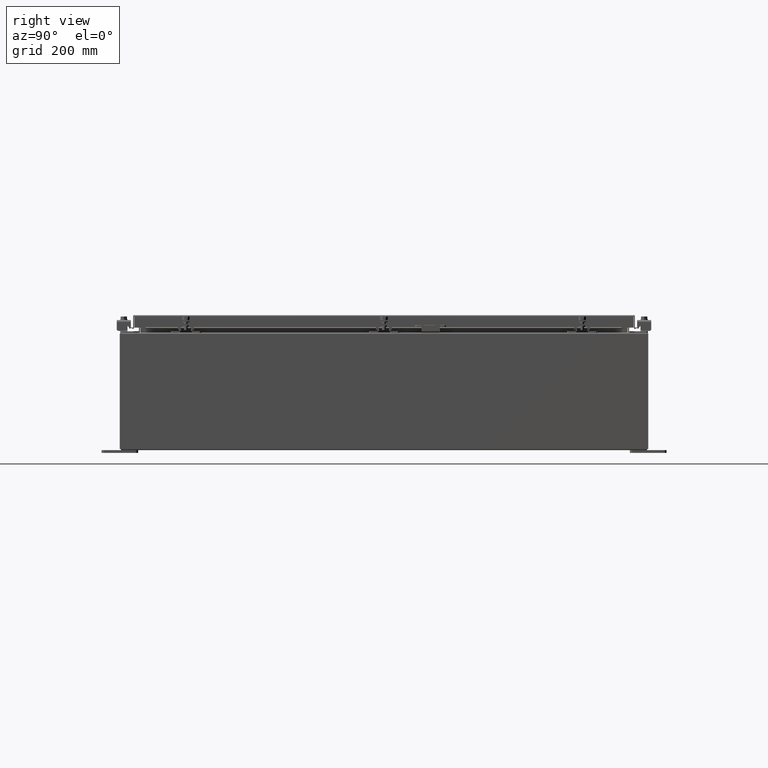
[diagram: clean part render]
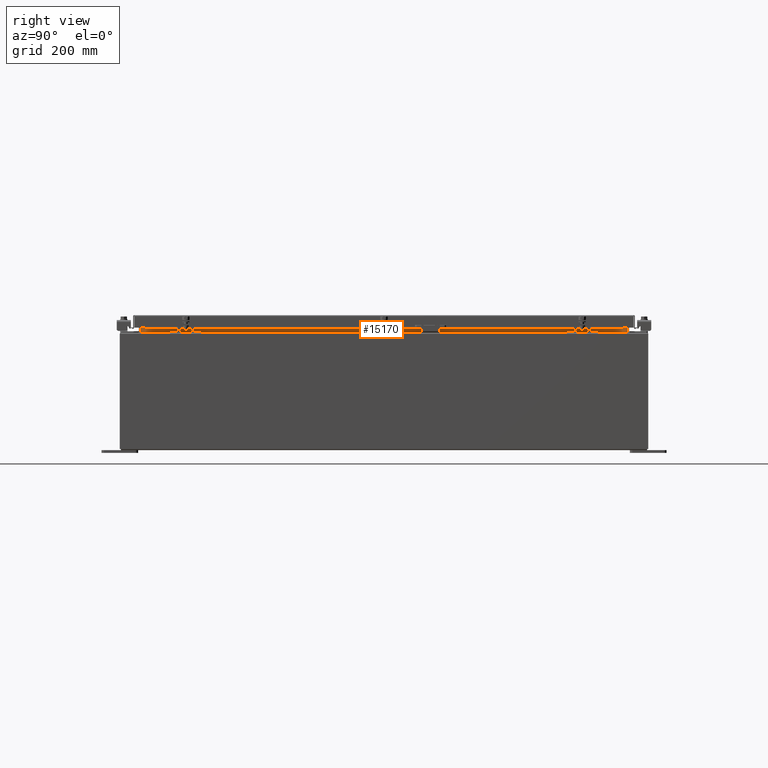
[diagram: same view with one face highlighted and labeled with its STEP entity id]
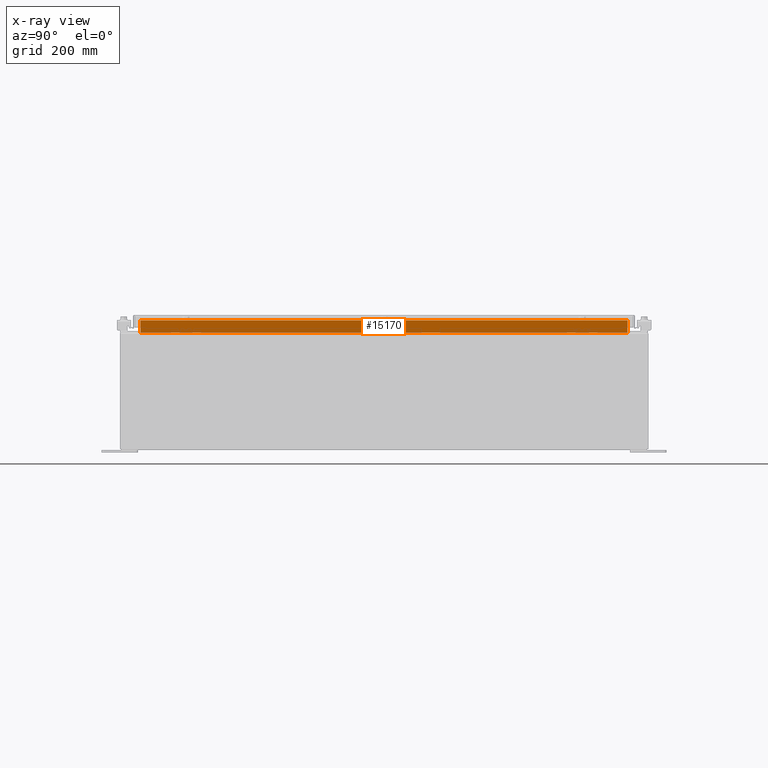
[diagram: x-ray of the same camera — body ghosted, the highlighted face saturated]
A machine part, right view. The second image highlights one B-rep face of the part: STEP entity #15170.
The next image is the same camera in x-ray: the body ghosted, the highlighted face saturated — about 0% of this face is hidden behind the body in this view.
In plain terms, the highlighted planar face has unit normal (1, 0, -0).
Its self-contained STEP definition (entity closure, byte-faithful):
#1275 = LINE ( 'NONE', #23011, #36123 ) ;
#2335 = ORIENTED_EDGE ( 'NONE', *, *, #18146, .F. ) ;
#3244 = DIRECTION ( 'NONE',  ( 1.000000000000000000, 0.0000000000000000000, -2.361913319930196000E-015 ) ) ;
#3658 = EDGE_CURVE ( 'NONE', #18336, #10353, #40567, .T. ) ;
#3848 = VECTOR ( 'NONE', #10683, 39.37007874015748100 ) ;
#5351 = EDGE_LOOP ( 'NONE', ( #28279, #2335, #10408, #29024 ) ) ;
#7172 = FACE_OUTER_BOUND ( 'NONE', #5351, .T. ) ;
#9615 = VERTEX_POINT ( 'NONE', #18386 ) ;
#10042 = LINE ( 'NONE', #42407, #26966 ) ;
#10353 = VERTEX_POINT ( 'NONE', #20926 ) ;
#10408 = ORIENTED_EDGE ( 'NONE', *, *, #35975, .F. ) ;
#10683 = DIRECTION ( 'NONE',  ( 0.0000000000000000000, 1.000000000000000000, 0.0000000000000000000 ) ) ;
#11665 = CARTESIAN_POINT ( 'NONE',  ( 13.69970000000002800, 16.59375000000000000, 7.938300000000010600 ) ) ;
#12287 = CARTESIAN_POINT ( 'NONE',  ( 13.69970000000003000, 16.59375000000000000, 7.938300000000007900 ) ) ;
#13292 = CARTESIAN_POINT ( 'NONE',  ( 13.69970000000000700, 0.0000000000000000000, -3.235532467496111900E-014 ) ) ;
#13577 = AXIS2_PLACEMENT_3D ( 'NONE', #13292, #3244, #26890 ) ;
#15170 = ADVANCED_FACE ( 'NONE', ( #7172 ), #43695, .T. ) ;
#18146 = EDGE_CURVE ( 'NONE', #9615, #31499, #20819, .T. ) ;
#18336 = VERTEX_POINT ( 'NONE', #11665 ) ;
#18386 = CARTESIAN_POINT ( 'NONE',  ( 13.69970000000003000, -16.59375000000000000, 8.762900000000007200 ) ) ;
#18834 = DIRECTION ( 'NONE',  ( -2.361913319930196000E-015, -0.0000000000000000000, -1.000000000000000000 ) ) ;
#20819 = LINE ( 'NONE', #34320, #3848 ) ;
#20926 = CARTESIAN_POINT ( 'NONE',  ( 13.69970000000002800, -16.59375000000000000, 7.938300000000010600 ) ) ;
#22613 = VECTOR ( 'NONE', #29129, 39.37007874015748100 ) ;
#23011 = CARTESIAN_POINT ( 'NONE',  ( 13.69970000000003000, -16.59375000000000000, 8.850600000000007100 ) ) ;
#26890 = DIRECTION ( 'NONE',  ( -2.361913319930196000E-015, 0.0000000000000000000, -1.000000000000000000 ) ) ;
#26966 = VECTOR ( 'NONE', #18834, 39.37007874015748100 ) ;
#28279 = ORIENTED_EDGE ( 'NONE', *, *, #43762, .F. ) ;
#29024 = ORIENTED_EDGE ( 'NONE', *, *, #3658, .F. ) ;
#29129 = DIRECTION ( 'NONE',  ( 6.585245634444928200E-017, -1.000000000000000000, 1.975573690333478700E-016 ) ) ;
#29910 = DIRECTION ( 'NONE',  ( 2.361913319930201500E-015, -0.0000000000000000000, 1.000000000000000000 ) ) ;
#31499 = VERTEX_POINT ( 'NONE', #42682 ) ;
#34320 = CARTESIAN_POINT ( 'NONE',  ( 13.69970000000002800, -16.59375000000000000, 8.762900000000007200 ) ) ;
#35975 = EDGE_CURVE ( 'NONE', #10353, #9615, #1275, .T. ) ;
#36123 = VECTOR ( 'NONE', #29910, 39.37007874015748100 ) ;
#40567 = LINE ( 'NONE', #12287, #22613 ) ;
#42407 = CARTESIAN_POINT ( 'NONE',  ( 13.69970000000002800, 16.59375000000000000, 7.925300000000007100 ) ) ;
#42682 = CARTESIAN_POINT ( 'NONE',  ( 13.69970000000002800, 16.59375000000000000, 8.762900000000007200 ) ) ;
#43695 = PLANE ( 'NONE',  #13577 ) ;
#43762 = EDGE_CURVE ( 'NONE', #31499, #18336, #10042, .T. ) ;